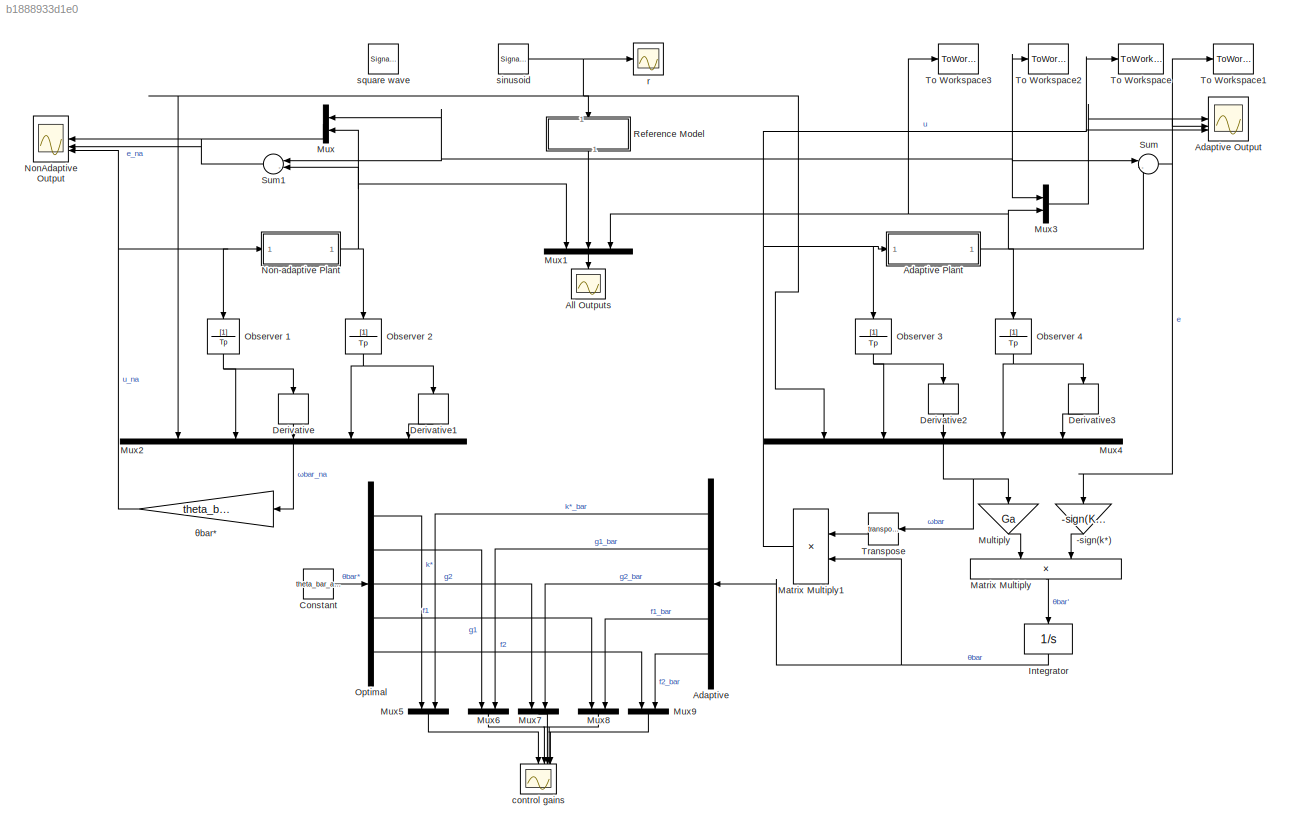
MODEL slx_b1888933d1e0
KIND model
CONFIG AbsTol = auto
CONFIG EnableMultiTasking = off
CONFIG FixedStep = auto
CONFIG MaxStep = auto
CONFIG MinStep = auto
CONFIG RelTol = 1e-3
CONFIG SampleTimeConstraint = Unconstrained
CONFIG SolverName = VariableStepAuto
CONFIG StartTime = 0.0
CONFIG StopTime = 100
BLOCK [Gain] -sign(k*)
  Gain = -sign(Kaster)
  NameLocation = right
BLOCK [Demux] Adaptive
  Outputs = 5
BLOCK [Scope] Adaptive Output
  Floating = off
  NumInputPorts = 3
  ScopeSpecificationString = Simulink.scopes.TimeScopeBlockCfg('CurrentConfiguration', extmgr.ConfigurationSet(extmgr.Configuration('Core','General UI',true,'FigureColor',[1 1 1]),extmgr.Configuration('Core','Source UI',true),extmgr.Configuration('Sources','WiredSimulink',true,'DataLoggingVariableName','ScopeData4'),extmgr.Configuration('Visuals','Time Domain',true,'SerializedDisplays',{struct('MinYLimReal','-11.61441','MaxYL...<+3378ch>
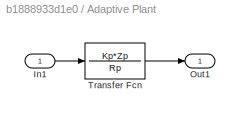
BLOCK [SubSystem] Adaptive Plant
BLOCK [Inport] Adaptive Plant/In1
BLOCK [Outport] Adaptive Plant/Out1
BLOCK [TransferFcn] Adaptive Plant/Transfer Fcn
  Denominator = Rp
  Numerator = Kp*Zp
BLOCK [Scope] All Outputs
  Floating = off
  NameLocation = left
  NumInputPorts = 1
  ScopeSpecificationString = Simulink.scopes.TimeScopeBlockCfg('CurrentConfiguration', extmgr.ConfigurationSet(extmgr.Configuration('Core','General UI',true,'FigureColor',[1 1 1]),extmgr.Configuration('Core','Source UI',true),extmgr.Configuration('Sources','WiredSimulink',true,'DataLoggingVariableName','ScopeData2'),extmgr.Configuration('Visuals','Time Domain',true,'SerializedDisplays',{struct('MinYLimReal','-11.61441','MaxYL...<+2020ch>
BLOCK [Constant] Constant
  Value = theta_bar_aster
BLOCK [Derivative] Derivative
  NameLocation = left
BLOCK [Derivative] Derivative1
  NameLocation = left
BLOCK [Derivative] Derivative2
  NameLocation = left
BLOCK [Derivative] Derivative3
  NameLocation = left
BLOCK [Integrator] Integrator
  ContinuousStateAttributes = 'theta_bar'
  InitialCondition = theta_bar_aster*0.1
  NameLocation = left
  ZeroCross = off
BLOCK [Product] Matrix Multiply
  Multiplication = Matrix(*)
  NameLocation = left
BLOCK [Product] Matrix Multiply1
  Multiplication = Matrix(*)
  NameLocation = top
BLOCK [Gain] Multiply
  Gain = Ga
  Multiplication = Matrix(K*u) (u vector)
  NameLocation = left
BLOCK [Mux] Mux
  DisplayOption = bar
  Inputs = 2
BLOCK [Mux] Mux1
  DisplayOption = bar
  Inputs = 3
  NameLocation = left
BLOCK [Mux] Mux2
  DisplayOption = bar
  Inputs = 5
  NameLocation = left
BLOCK [Mux] Mux3
  DisplayOption = bar
  Inputs = 2
BLOCK [Mux] Mux4
  DisplayOption = bar
  Inputs = 5
  NameLocation = left
BLOCK [Mux] Mux5
  DisplayOption = bar
  Inputs = 2
  NameLocation = right
BLOCK [Mux] Mux6
  DisplayOption = bar
  Inputs = 2
  NameLocation = right
BLOCK [Mux] Mux7
  DisplayOption = bar
  Inputs = 2
  NameLocation = right
BLOCK [Mux] Mux8
  DisplayOption = bar
  Inputs = 2
  NameLocation = right
BLOCK [Mux] Mux9
  DisplayOption = bar
  Inputs = 2
  NameLocation = right
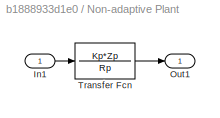
BLOCK [SubSystem] Non-adaptive Plant
BLOCK [Inport] Non-adaptive Plant/In1
BLOCK [Outport] Non-adaptive Plant/Out1
BLOCK [TransferFcn] Non-adaptive Plant/Transfer Fcn
  Denominator = Rp
  Numerator = Kp*Zp
BLOCK [Scope] NonAdaptive Output
  Floating = off
  NumInputPorts = 3
  ScopeSpecificationString = Simulink.scopes.TimeScopeBlockCfg('CurrentConfiguration', extmgr.ConfigurationSet(extmgr.Configuration('Core','General UI',true,'FigureColor',[1 1 1]),extmgr.Configuration('Core','Source UI',true),extmgr.Configuration('Sources','WiredSimulink',true,'DataLoggingVariableName','ScopeData1'),extmgr.Configuration('Visuals','Time Domain',true,'SerializedDisplays',{struct('MinYLimReal','-11.60927','MaxYL...<+3349ch>
BLOCK [TransferFcn] Observer 1
  Denominator = Tp
  NameLocation = left
BLOCK [TransferFcn] Observer 2
  Denominator = Tp
  NameLocation = left
BLOCK [TransferFcn] Observer 3
  Denominator = Tp
  NameLocation = left
BLOCK [TransferFcn] Observer 4
  Denominator = Tp
  NameLocation = left
BLOCK [Demux] Optimal
  NameLocation = top
  Outputs = 5
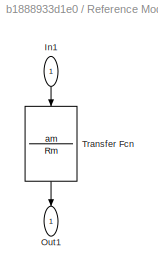
BLOCK [SubSystem] Reference Model
  NameLocation = left
BLOCK [Inport] Reference Model/In1
  NameLocation = left
BLOCK [Outport] Reference Model/Out1
  NameLocation = left
BLOCK [TransferFcn] Reference Model/Transfer Fcn
  Denominator = Rm
  NameLocation = left
  Numerator = am
BLOCK [Sum] Sum
  Inputs = |-+
BLOCK [Sum] Sum1
  Inputs = |-+
  NameLocation = top
BLOCK [ToWorkspace] To Workspace
  FixptAsFi = on
  MaxDataPoints = inf
  SampleTime = -1
  SaveFormat = Timeseries
  VariableName = u
BLOCK [ToWorkspace] To Workspace1
  FixptAsFi = on
  MaxDataPoints = inf
  SampleTime = -1
  SaveFormat = Timeseries
  VariableName = e
BLOCK [ToWorkspace] To Workspace2
  FixptAsFi = on
  MaxDataPoints = inf
  SampleTime = -1
  SaveFormat = Timeseries
  VariableName = ym
BLOCK [ToWorkspace] To Workspace3
  FixptAsFi = on
  MaxDataPoints = inf
  SampleTime = -1
  SaveFormat = Timeseries
  VariableName = y
BLOCK [Math] Transpose
  NameLocation = top
  Operator = transpose
BLOCK [Scope] control gains
  Floating = off
  NameLocation = left
  NumInputPorts = 5
  ScopeSpecificationString = Simulink.scopes.TimeScopeBlockCfg('CurrentConfiguration', extmgr.ConfigurationSet(extmgr.Configuration('Core','General UI',true,'FigureColor',[1 1 1]),extmgr.Configuration('Core','Source UI',true),extmgr.Configuration('Sources','WiredSimulink',true,'DataLoggingVariableName','ScopeData1','DataLogging',true),extmgr.Configuration('Visuals','Time Domain',true,'SerializedDisplays',{struct('MinYLimReal'...<+6271ch>
BLOCK [Scope] r
  Floating = off
  NumInputPorts = 1
  ScopeSpecificationString = Simulink.scopes.TimeScopeBlockCfg('CurrentConfiguration', extmgr.ConfigurationSet(extmgr.Configuration('Core','General UI',true),extmgr.Configuration('Core','Source UI',true),extmgr.Configuration('Sources','WiredSimulink',true),extmgr.Configuration('Visuals','Time Domain',true,'SerializedDisplays',{struct('MinYLimReal','-1.25','MaxYLimReal','1.25','YLabelReal','','MinYLimMag','0.00000','MaxYLimMag...<+1430ch>
BLOCK [SignalGenerator] sinusoid
  Amplitude = 10
  Frequency = 2
  Units = rad/sec
BLOCK [SignalGenerator] square wave 
  Frequency = 0.1
  WaveForm = square
BLOCK [Gain] θbar*
  Gain = theta_bar_aster
  Multiplication = Matrix(K*u) (u vector)
LINE -sign(k*):1 -> Matrix Multiply:2
LINE Adaptive Plant/In1:1 -> Adaptive Plant/Transfer Fcn:1
LINE Adaptive Plant/Transfer Fcn:1 -> Adaptive Plant/Out1:1
NET Adaptive Plant:1 -> Mux1:3, Mux3:2, Observer 4:1, Sum:2, To Workspace3:1
LINE Adaptive:1 -> Mux5:2
LINE Adaptive:2 -> Mux6:2
LINE Adaptive:3 -> Mux7:2
LINE Adaptive:4 -> Mux8:2
LINE Adaptive:5 -> Mux9:2
LINE Constant:1 -> Optimal:1
LINE Derivative1:1 -> Mux2:5
LINE Derivative2:1 -> Mux4:3
LINE Derivative3:1 -> Mux4:5
LINE Derivative:1 -> Mux2:3
NET Integrator:1 -> Adaptive:1, Matrix Multiply1:2
NET Matrix Multiply1:1 -> Adaptive Output:3, Adaptive Plant:1, Observer 3:1, To Workspace:1
LINE Matrix Multiply:1 -> Integrator:1
LINE Multiply:1 -> Matrix Multiply:1
LINE Mux1:1 -> All Outputs:1
LINE Mux2:1 -> θbar*:1
LINE Mux3:1 -> Adaptive Output:1
NET Mux4:1 -> Multiply:1, Transpose:1
LINE Mux5:1 -> control gains:1
LINE Mux6:1 -> control gains:2
LINE Mux7:1 -> control gains:3
LINE Mux8:1 -> control gains:4
LINE Mux9:1 -> control gains:5
LINE Mux:1 -> NonAdaptive Output:1
LINE Non-adaptive Plant/In1:1 -> Non-adaptive Plant/Transfer Fcn:1
LINE Non-adaptive Plant/Transfer Fcn:1 -> Non-adaptive Plant/Out1:1
NET Non-adaptive Plant:1 -> Mux1:1, Mux:2, Observer 2:1, Sum1:2
NET Observer 1:1 -> Derivative:1, Mux2:2
NET Observer 2:1 -> Derivative1:1, Mux2:4
NET Observer 3:1 -> Derivative2:1, Mux4:2
NET Observer 4:1 -> Derivative3:1, Mux4:4
LINE Optimal:1 -> Mux5:1
LINE Optimal:2 -> Mux6:1
LINE Optimal:3 -> Mux7:1
LINE Optimal:4 -> Mux8:1
LINE Optimal:5 -> Mux9:1
LINE Reference Model/In1:1 -> Reference Model/Transfer Fcn:1
LINE Reference Model/Transfer Fcn:1 -> Reference Model/Out1:1
NET Reference Model:1 -> Mux1:2, Mux3:1, Mux:1, Sum1:1, Sum:1, To Workspace2:1
LINE Sum1:1 -> NonAdaptive Output:2
NET Sum:1 -> -sign(k*):1, Adaptive Output:2, To Workspace1:1
LINE Transpose:1 -> Matrix Multiply1:1
NET sinusoid:1 -> Mux2:1, Mux4:1, Reference Model:1, r:1
NET θbar*:1 -> Non-adaptive Plant:1, NonAdaptive Output:3, Observer 1:1
note: NET lines group one-source signal fan-out (src -> all destinations, sorted); 1:1 wires keep LINE
